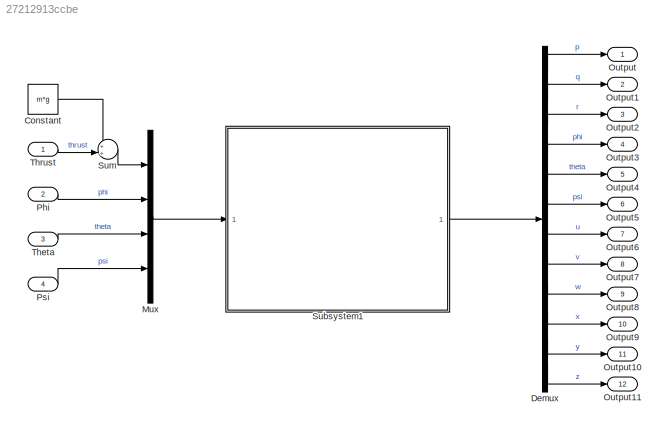
MODEL slx_27212913ccbe
KIND model
CONFIG AbsTol = auto
CONFIG EnableMultiTasking = off
CONFIG FixedStep = auto
CONFIG InitFcn = a_Initial
CONFIG MaxStep = auto
CONFIG MinStep = auto
CONFIG RelTol = 1e-3
CONFIG SampleTimeConstraint = Unconstrained
CONFIG Solver = VariableStepAuto
CONFIG SolverName = VariableStepAuto
CONFIG StartTime = 0.0
CONFIG StopTime = 20
BLOCK [Constant] Constant
  Value = m*g
BLOCK [Demux] Demux
  DisplayOption = bar
  Outputs = 12
  Ports = [1, 12]
BLOCK [Mux] Mux
  DisplayOption = bar
  Ports = [4, 1]
BLOCK [Outport] Output
  IconDisplay = Port number
BLOCK [Outport] Output1
  IconDisplay = Port number
  Port = 2
BLOCK [Outport] Output10
  IconDisplay = Port number
  Port = 11
BLOCK [Outport] Output11
  IconDisplay = Port number
  Port = 12
BLOCK [Outport] Output2
  IconDisplay = Port number
  Port = 3
BLOCK [Outport] Output3
  IconDisplay = Port number
  Port = 4
BLOCK [Outport] Output4
  IconDisplay = Port number
  Port = 5
BLOCK [Outport] Output5
  IconDisplay = Port number
  Port = 6
BLOCK [Outport] Output6
  IconDisplay = Port number
  Port = 7
BLOCK [Outport] Output7
  IconDisplay = Port number
  Port = 8
BLOCK [Outport] Output8
  IconDisplay = Port number
  Port = 9
BLOCK [Outport] Output9
  IconDisplay = Port number
  Port = 10
BLOCK [Inport] Phi
  IconDisplay = Port number
  Port = 2
BLOCK [Inport] Psi
  IconDisplay = Port number
  Port = 4
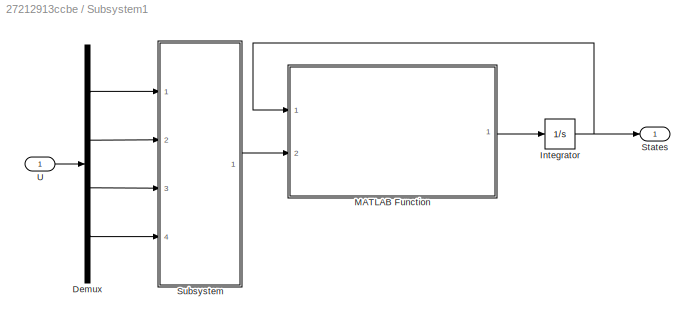
BLOCK [SubSystem] Subsystem1
  Ports = [1, 1]
  RequestExecContextInheritance = off
BLOCK [Demux] Subsystem1/Demux
  DisplayOption = bar
  Ports = [1, 4]
BLOCK [Integrator] Subsystem1/Integrator
  InitialCondition = X0
  Ports = [1, 1]
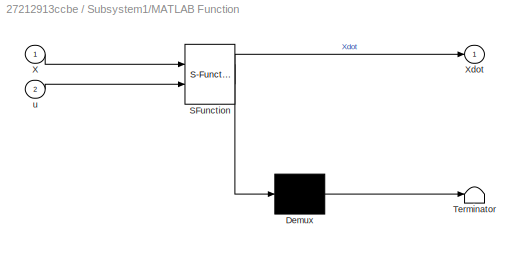
BLOCK [SubSystem] Subsystem1/MATLAB Function
  ErrorFcn = Stateflow.Translate.translate
  PermitHierarchicalResolution = ExplicitOnly
  Ports = [2, 1]
  RequestExecContextInheritance = off
  SFBlockType = MATLAB Function
  TreatAsAtomicUnit = on
BLOCK [Demux] Subsystem1/MATLAB Function/ Demux 
  Outputs = 1
  Ports = [1, 1]
BLOCK [S-Function] Subsystem1/MATLAB Function/ SFunction 
  EnableBusSupport = on
  FunctionName = sf_sfun
  PortCounts = [2 2]
  Ports = [2, 2]
  SFcnIsStateOwnerBlock = off
  SFunctionDeploymentMode = off
  Tag = Stateflow S-Function a_Quadrotor_Plant_Sim 2
BLOCK [Terminator] Subsystem1/MATLAB Function/ Terminator 
BLOCK [Inport] Subsystem1/MATLAB Function/X
  IconDisplay = Port number
BLOCK [Outport] Subsystem1/MATLAB Function/Xdot
  IconDisplay = Port number
BLOCK [Inport] Subsystem1/MATLAB Function/u
  IconDisplay = Port number
  Port = 2
BLOCK [Outport] Subsystem1/States
  IconDisplay = Port number
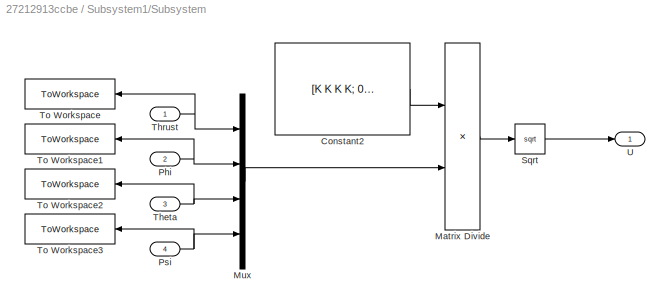
BLOCK [SubSystem] Subsystem1/Subsystem
  Ports = [4, 1]
  RequestExecContextInheritance = off
BLOCK [Constant] Subsystem1/Subsystem/Constant2
  Value = [K K K K; 0 -K*L 0 K*L; K*L 0 -K*L 0; -B B -B B]
BLOCK [Product] Subsystem1/Subsystem/Matrix Divide
  InputSameDT = off
  Inputs = /*
  Multiplication = Matrix(*)
  OutDataTypeStr = Inherit: Inherit via internal rule
  Ports = [2, 1]
  RndMeth = Floor
  SaturateOnIntegerOverflow = off
BLOCK [Mux] Subsystem1/Subsystem/Mux
  DisplayOption = bar
  Ports = [4, 1]
BLOCK [Inport] Subsystem1/Subsystem/Phi
  IconDisplay = Port number
  Port = 2
BLOCK [Inport] Subsystem1/Subsystem/Psi
  IconDisplay = Port number
  Port = 4
BLOCK [Sqrt] Subsystem1/Subsystem/Sqrt
BLOCK [Inport] Subsystem1/Subsystem/Theta
  IconDisplay = Port number
  Port = 3
BLOCK [Inport] Subsystem1/Subsystem/Thrust
  IconDisplay = Port number
BLOCK [ToWorkspace] Subsystem1/Subsystem/To Workspace
  FixptAsFi = on
  MaxDataPoints = inf
  Ports = [1]
  SampleTime = -1
  VariableName = Thrust
BLOCK [ToWorkspace] Subsystem1/Subsystem/To Workspace1
  FixptAsFi = on
  MaxDataPoints = inf
  Ports = [1]
  SampleTime = -1
  VariableName = Mphi
BLOCK [ToWorkspace] Subsystem1/Subsystem/To Workspace2
  FixptAsFi = on
  MaxDataPoints = inf
  Ports = [1]
  SampleTime = -1
  VariableName = Mtheta
BLOCK [ToWorkspace] Subsystem1/Subsystem/To Workspace3
  FixptAsFi = on
  MaxDataPoints = inf
  Ports = [1]
  SampleTime = -1
  VariableName = Mpsi
BLOCK [Outport] Subsystem1/Subsystem/U
  IconDisplay = Port number
BLOCK [Inport] Subsystem1/U
  IconDisplay = Port number
BLOCK [Sum] Sum
  IconShape = round
  InputSameDT = off
  Inputs = ++|
  OutDataTypeStr = Inherit: Inherit via internal rule
  Ports = [2, 1]
  SaturateOnIntegerOverflow = off
BLOCK [Inport] Theta
  IconDisplay = Port number
  Port = 3
BLOCK [Inport] Thrust
  IconDisplay = Port number
LINE Constant:1 -> Sum:1
LINE Demux:1 -> Output:1
LINE Demux:10 -> Output9:1
LINE Demux:11 -> Output10:1
LINE Demux:12 -> Output11:1
LINE Demux:2 -> Output1:1
LINE Demux:3 -> Output2:1
LINE Demux:4 -> Output3:1
LINE Demux:5 -> Output4:1
LINE Demux:6 -> Output5:1
LINE Demux:7 -> Output6:1
LINE Demux:8 -> Output7:1
LINE Demux:9 -> Output8:1
LINE Mux:1 -> Subsystem1:1
LINE Phi:1 -> Mux:2
LINE Psi:1 -> Mux:4
LINE Subsystem1/Demux:1 -> Subsystem1/Subsystem:1
LINE Subsystem1/Demux:2 -> Subsystem1/Subsystem:2
LINE Subsystem1/Demux:3 -> Subsystem1/Subsystem:3
LINE Subsystem1/Demux:4 -> Subsystem1/Subsystem:4
NET Subsystem1/Integrator:1 -> Subsystem1/MATLAB Function:1, Subsystem1/States:1
LINE Subsystem1/MATLAB Function:1 -> Subsystem1/Integrator:1
LINE Subsystem1/Subsystem/Constant2:1 -> Subsystem1/Subsystem/Matrix Divide:1
LINE Subsystem1/Subsystem/Matrix Divide:1 -> Subsystem1/Subsystem/Sqrt:1
LINE Subsystem1/Subsystem/Mux:1 -> Subsystem1/Subsystem/Matrix Divide:2
NET Subsystem1/Subsystem/Phi:1 -> Subsystem1/Subsystem/Mux:2, Subsystem1/Subsystem/To Workspace1:1
NET Subsystem1/Subsystem/Psi:1 -> Subsystem1/Subsystem/Mux:4, Subsystem1/Subsystem/To Workspace3:1
LINE Subsystem1/Subsystem/Sqrt:1 -> Subsystem1/Subsystem/U:1
NET Subsystem1/Subsystem/Theta:1 -> Subsystem1/Subsystem/Mux:3, Subsystem1/Subsystem/To Workspace2:1
NET Subsystem1/Subsystem/Thrust:1 -> Subsystem1/Subsystem/Mux:1, Subsystem1/Subsystem/To Workspace:1
LINE Subsystem1/Subsystem:1 -> Subsystem1/MATLAB Function:2
LINE Subsystem1/U:1 -> Subsystem1/Demux:1
LINE Subsystem1:1 -> Demux:1
LINE Sum:1 -> Mux:1
LINE Theta:1 -> Mux:3
LINE Thrust:1 -> Sum:2
note: NET lines group one-source signal fan-out (src -> all destinations, sorted); 1:1 wires keep LINE
CHART Subsystem1/MATLAB Function states=1 transitions=1
  STATE_LABEL 'eML_blk_kernel()'
  STATE_LABEL 'SCRIPT:\nfunction Xdot = Quadrotor_Model(X, u)\n\nk   = 2.98e-06;\nb   = 0.114e-06;\nd   = b/k;\nl   = 0.225;\nm   = 0.468;\nIxx = 4.856e-03;\nIyy = 4.856e-03;\nIzz = 8.801e-03;\nIr  = 3.357e-05;\nAx  = 0.3;\nAy  = 0.3;\nAz  = 0.25;\nAr  = 0.2;\ng   = 9.8;\n\nP = X(1);\nQ = X(2);\nR = X(3);\n\nPhi = X(4);\nThe = X(5);\nPsi = X(6);\n\nU = X(7);\nV = X(8);\nW = X(9);\n\nx = X(10);\nY = X(11);\nZ = X(12);\n\nw1 = u(1);\nw2 = u(2);\nw3 ...<+762ch>'
